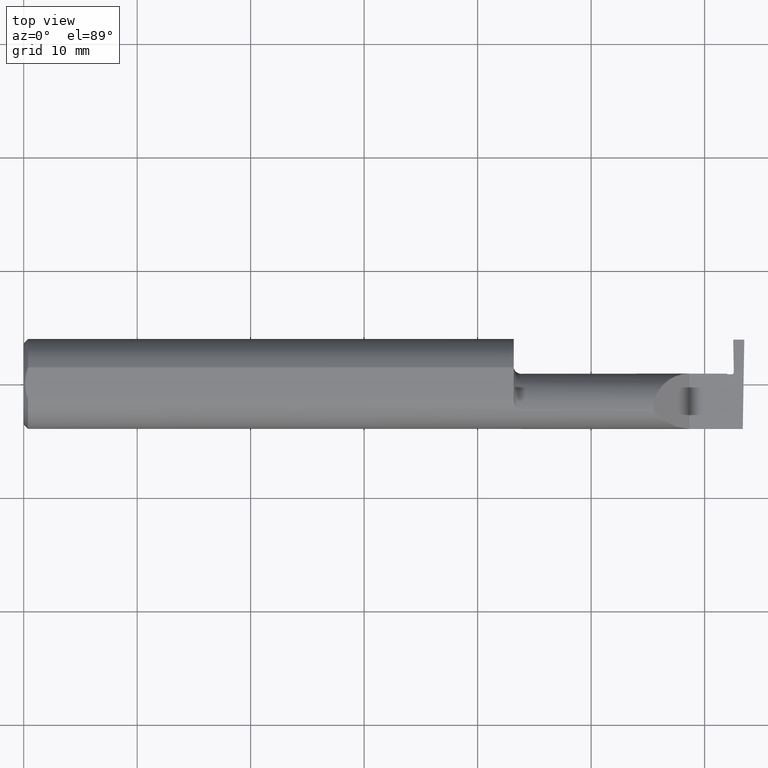
[diagram: clean part render]
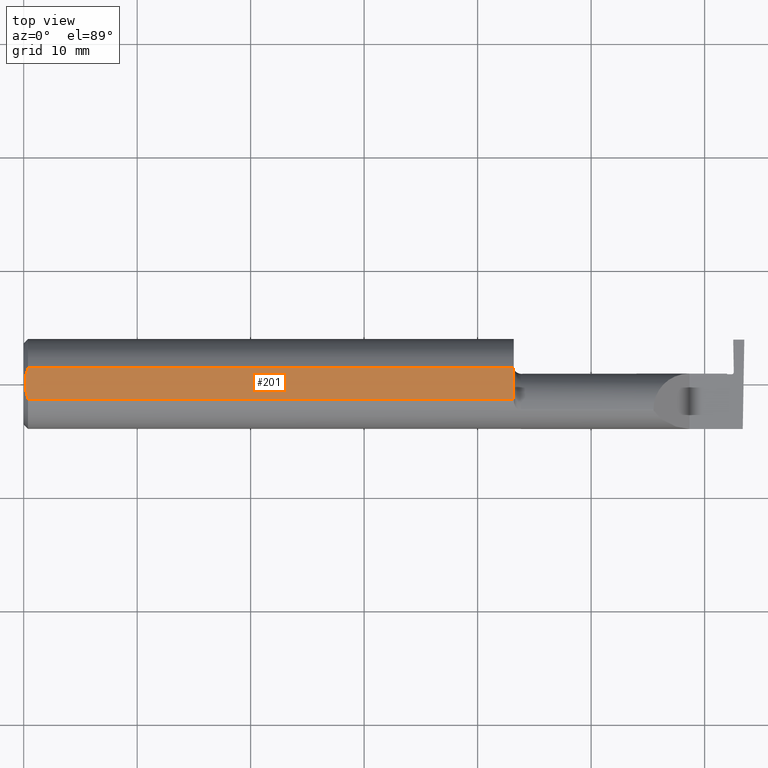
[diagram: same view with one face highlighted and labeled with its STEP entity id]
A machine part, top view. The second image highlights one B-rep face of the part: STEP entity #201.
In plain terms, the highlighted planar face has unit normal (0, -0, 1).
Its self-contained STEP definition (entity closure, byte-faithful):
#3 = CARTESIAN_POINT ( 'NONE',  ( 0.004999999999999936787, 2.057148927093534050E-17, 0.1460999999999999799 ) ) ;
#26 = DIRECTION ( 'NONE',  ( 1.000000000000000000, 0.000000000000000000, -0.000000000000000000 ) ) ;
#31 = CARTESIAN_POINT ( 'NONE',  ( 0.01499999999999999944, -0.05497272050753900657, 0.1460999999999999799 ) ) ;
#39 = EDGE_CURVE ( 'NONE', #521, #159, #1054, .T. ) ;
#91 = CARTESIAN_POINT ( 'NONE',  ( 0.005929349363808920914, 0.01879672308419500643, 0.1460999999999999799 ) ) ;
#107 = FACE_OUTER_BOUND ( 'NONE', #707, .T. ) ;
#123 = LINE ( 'NONE', #961, #318 ) ;
#129 = CARTESIAN_POINT ( 'NONE',  ( 0.000000000000000000, 0.05497272050753900657, 0.1460999999999999799 ) ) ;
#159 = VERTEX_POINT ( 'NONE', #31 ) ;
#178 = VERTEX_POINT ( 'NONE', #530 ) ;
#191 = DIRECTION ( 'NONE',  ( 1.000000000000000000, 0.000000000000000000, 0.000000000000000000 ) ) ;
#201 = ADVANCED_FACE ( 'NONE', ( #107 ), #963, .T. ) ;
#272 = CARTESIAN_POINT ( 'NONE',  ( 2.500000000000000000, -0.1561000000000000165, 0.1460999999999999799 ) ) ;
#276 = LINE ( 'NONE', #874, #954 ) ;
#280 = DIRECTION ( 'NONE',  ( -0.000000000000000000, 1.000000000000000000, 0.000000000000000000 ) ) ;
#318 = VECTOR ( 'NONE', #280, 39.37007874015748143 ) ;
#324 = VERTEX_POINT ( 'NONE', #925 ) ;
#330 = CARTESIAN_POINT ( 'NONE',  ( 0.01190375560897317594, -0.04618065518901644934, 0.1460999999999999799 ) ) ;
#342 = CARTESIAN_POINT ( 'NONE',  ( 0.005910707775482238607, -0.01866948012536270504, 0.1461000000000000076 ) ) ;
#400 = ORIENTED_EDGE ( 'NONE', *, *, #870, .T. ) ;
#431 = CARTESIAN_POINT ( 'NONE',  ( 0.004999999999999936787, 2.057148927093534050E-17, 0.1460999999999999799 ) ) ;
#434 = EDGE_CURVE ( 'NONE', #1026, #324, #123, .T. ) ;
#438 = CARTESIAN_POINT ( 'NONE',  ( 0.009371209226503902576, 0.03711161584255317364, 0.1461000000000000076 ) ) ;
#465 = ORIENTED_EDGE ( 'NONE', *, *, #467, .T. ) ;
#467 = EDGE_CURVE ( 'NONE', #324, #178, #966, .T. ) ;
#505 = CARTESIAN_POINT ( 'NONE',  ( 0.01499999999999999771, 0.05497272050753900657, 0.1460999999999999799 ) ) ;
#521 = VERTEX_POINT ( 'NONE', #987 ) ;
#530 = CARTESIAN_POINT ( 'NONE',  ( 0.01499999999999999771, 0.05497272050753900657, 0.1460999999999999799 ) ) ;
#573 = CARTESIAN_POINT ( 'NONE',  ( 0.01499999999999999944, -0.05497272050753900657, 0.1460999999999999799 ) ) ;
#599 = VECTOR ( 'NONE', #889, 39.37007874015748143 ) ;
#657 = CARTESIAN_POINT ( 'NONE',  ( 0.009356849677355947789, -0.03706298561014172849, 0.1460999999999999799 ) ) ;
#661 = ORIENTED_EDGE ( 'NONE', *, *, #822, .T. ) ;
#698 = ORIENTED_EDGE ( 'NONE', *, *, #434, .T. ) ;
#707 = EDGE_LOOP ( 'NONE', ( #400, #698, #465, #661, #1058 ) ) ;
#770 = CARTESIAN_POINT ( 'NONE',  ( 0.004999999999999902960, 0.009391435229055663386, 0.1460999999999999799 ) ) ;
#771 = DIRECTION ( 'NONE',  ( 0.000000000000000000, -0.000000000000000000, 1.000000000000000000 ) ) ;
#799 = B_SPLINE_CURVE_WITH_KNOTS ( 'NONE', 3,
 ( #505, #849, #438, #91, #770, #431 ),
 .UNSPECIFIED., .F., .F.,
 ( 4, 2, 4 ),
 ( 0.003294562426666346362, 0.003999440028384116178, 0.004704317630101885993 ),
 .UNSPECIFIED. ) ;
#822 = EDGE_CURVE ( 'NONE', #178, #521, #799, .T. ) ;
#824 = CARTESIAN_POINT ( 'NONE',  ( 0.004999999999999897755, -0.009384304010803548590, 0.1460999999999999521 ) ) ;
#849 = CARTESIAN_POINT ( 'NONE',  ( 0.01187749995209270472, 0.04610609988228752537, 0.1460999999999999799 ) ) ;
#870 = EDGE_CURVE ( 'NONE', #159, #1026, #276, .T. ) ;
#874 = CARTESIAN_POINT ( 'NONE',  ( 0.000000000000000000, -0.05497272050753900657, 0.1460999999999999799 ) ) ;
#889 = DIRECTION ( 'NONE',  ( -1.000000000000000000, -0.000000000000000000, -0.000000000000000000 ) ) ;
#900 = AXIS2_PLACEMENT_3D ( 'NONE', #272, #771, #26 ) ;
#925 = CARTESIAN_POINT ( 'NONE',  ( 1.699999999999999956, 0.05497272050753900657, 0.1460999999999999799 ) ) ;
#954 = VECTOR ( 'NONE', #191, 39.37007874015748143 ) ;
#961 = CARTESIAN_POINT ( 'NONE',  ( 1.699999999999999956, -0.1561000000000000165, 0.1460999999999999799 ) ) ;
#963 = PLANE ( 'NONE',  #900 ) ;
#966 = LINE ( 'NONE', #129, #599 ) ;
#987 = CARTESIAN_POINT ( 'NONE',  ( 0.004999999999999936787, 2.057148927093534050E-17, 0.1460999999999999799 ) ) ;
#999 = CARTESIAN_POINT ( 'NONE',  ( 1.699999999999999956, -0.05497272050753899270, 0.1460999999999999799 ) ) ;
#1026 = VERTEX_POINT ( 'NONE', #999 ) ;
#1054 = B_SPLINE_CURVE_WITH_KNOTS ( 'NONE', 3,
 ( #3, #824, #342, #657, #330, #573 ),
 .UNSPECIFIED., .F., .F.,
 ( 4, 2, 4 ),
 ( 0.004704317630101885993, 0.005408659995628783967, 0.006113002361155681942 ),
 .UNSPECIFIED. ) ;
#1058 = ORIENTED_EDGE ( 'NONE', *, *, #39, .T. ) ;